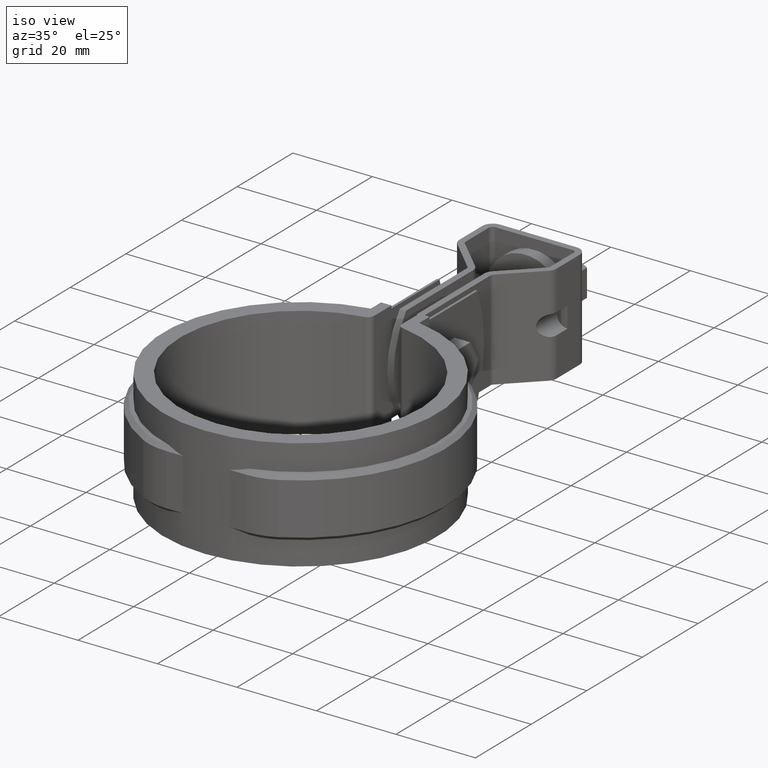
[diagram: clean part render]
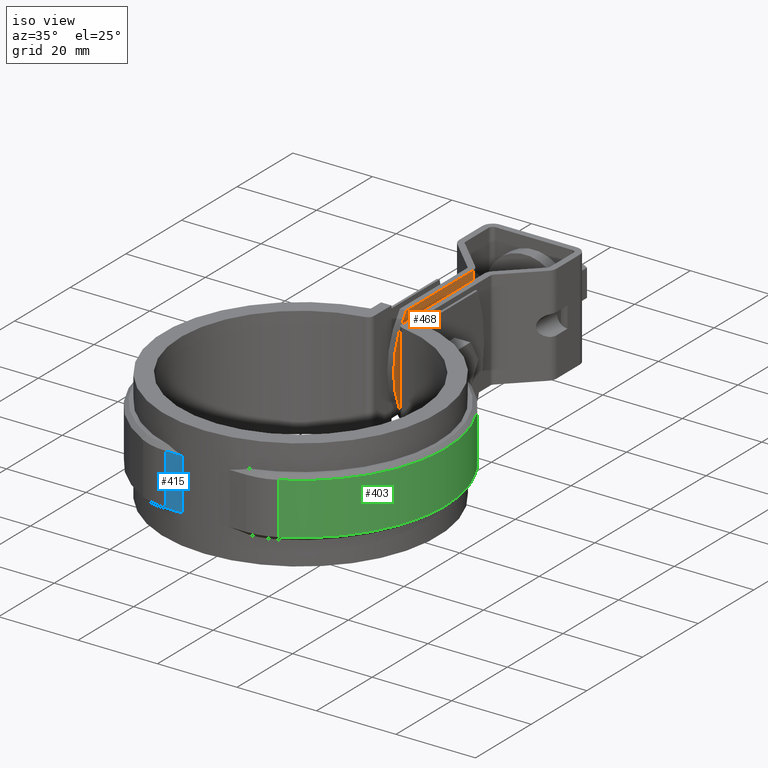
[diagram: same view with three faces highlighted in distinct colors, each labeled with its STEP entity id]
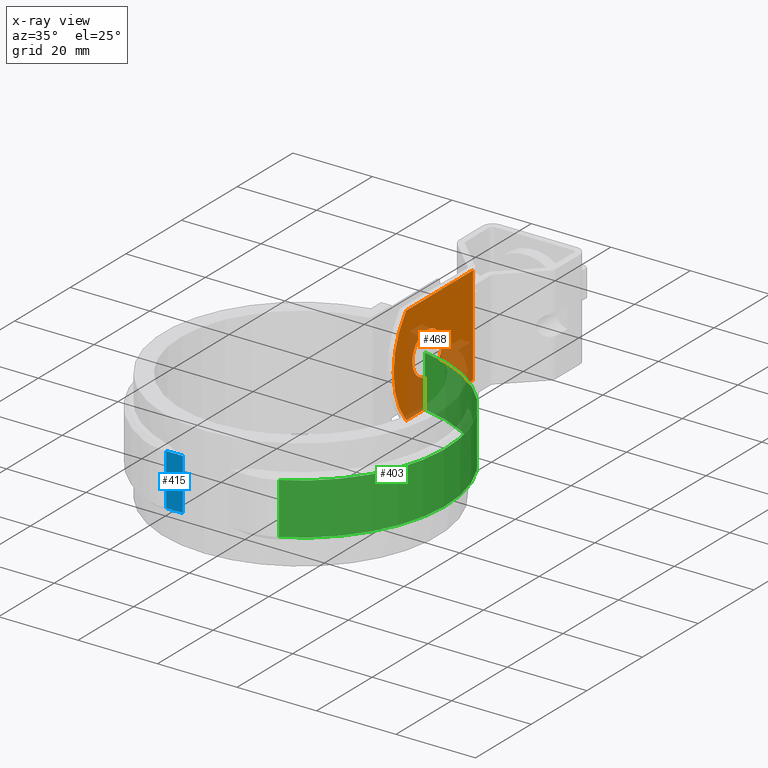
[diagram: x-ray of the same camera — body ghosted, the three highlighted faces saturated]
A machine part, iso view with three faces highlighted in distinct colors.
The next image is the same camera in x-ray (body ghosted, the three faces saturated) — at least one of them is partly hidden behind the body in this view.
Their STEP definitions:

[orange] entity #468 — the highlighted planar face has unit normal (1, 0, -0).
#468 = ADVANCED_FACE( '', ( #862, #863 ), #864, .T. );
#862 = FACE_BOUND( '', #1865, .T. );
#863 = FACE_OUTER_BOUND( '', #1866, .T. );
#864 = PLANE( '', #1867 );
#1865 = EDGE_LOOP( '', ( #4214 ) );
#1866 = EDGE_LOOP( '', ( #4215, #4216, #4217, #4218 ) );
#1867 = AXIS2_PLACEMENT_3D( '', #4219, #4220, #4221 );
#4214 = ORIENTED_EDGE( '', *, *, #5208, .T. );
#4215 = ORIENTED_EDGE( '', *, *, #5211, .T. );
#4216 = ORIENTED_EDGE( '', *, *, #5204, .T. );
#4217 = ORIENTED_EDGE( '', *, *, #5126, .F. );
#4218 = ORIENTED_EDGE( '', *, *, #5206, .T. );
#4219 = CARTESIAN_POINT( '', ( -1.40000000004981, 35.4015111806816, -25.0000000057727 ) );
#4220 = DIRECTION( '', ( 1.00000000000000, 8.93767281156515E-014, -3.93847312317879E-013 ) );
#4221 = DIRECTION( '', ( 8.93767281407311E-014, -1.00000000000000, 6.36784791563427E-011 ) );
#5126 = EDGE_CURVE( '', #5968, #5969, #5970, .T. );
#5204 = EDGE_CURVE( '', #6103, #5969, #6106, .T. );
#5206 = EDGE_CURVE( '', #5968, #6108, #6110, .T. );
#5208 = EDGE_CURVE( '', #6112, #6112, #6113, .F. );
#5211 = EDGE_CURVE( '', #6108, #6103, #6117, .T. );
#5968 = VERTEX_POINT( '', #9062 );
#5969 = VERTEX_POINT( '', #9063 );
#5970 = LINE( '', #9064, #9065 );
#6103 = VERTEX_POINT( '', #9269 );
#6106 = LINE( '', #9273, #9274 );
#6108 = VERTEX_POINT( '', #9276 );
#6110 = CIRCLE( '', #9279, 19.6111110000000 );
#6112 = VERTEX_POINT( '', #9281 );
#6113 = CIRCLE( '', #9282, 5.25000000000000 );
#6117 = LINE( '', #9287, #9288 );
#9062 = CARTESIAN_POINT( '', ( -1.40000000004037, 39.9015112153615, -6.05930583486014E-009 ) );
#9063 = CARTESIAN_POINT( '', ( -1.40000000004253, 63.9556575565696, -7.59103890857205E-009 ) );
#9064 = CARTESIAN_POINT( '', ( -1.40000000003996, 35.4015111822735, -5.77274339441658E-009 ) );
#9065 = VECTOR( '', #10155, 1000.00000000000 );
#9269 = CARTESIAN_POINT( '', ( -1.40000000005237, 63.9556575549776, -25.0000000075910 ) );
#9273 = CARTESIAN_POINT( '', ( -1.40000000005236, 63.9556575549776, -25.0000000075910 ) );
#9274 = VECTOR( '', #10283, 1000.00000000000 );
#9276 = CARTESIAN_POINT( '', ( -1.40000000005021, 39.9015112137697, -25.0000000060593 ) );
#9279 = AXIS2_PLACEMENT_3D( '', #10285, #10286, #10287 );
#9281 = CARTESIAN_POINT( '', ( -1.40000000004549, 42.1515111814774, -12.5000000062026 ) );
#9282 = AXIS2_PLACEMENT_3D( '', #10291, #10292, #10293 );
#9287 = CARTESIAN_POINT( '', ( -1.40000000004981, 35.4015111806816, -25.0000000057727 ) );
#9288 = VECTOR( '', #10298, 1000.00000000000 );
#10155 = DIRECTION( '', ( -8.97097950481186E-014, 1.00000000000000, -6.36784791563427E-011 ) );
#10283 = DIRECTION( '', ( 3.93847312312188E-013, 6.36784194194502E-011, 1.00000000000000 ) );
#10285 = CARTESIAN_POINT( '', ( -1.40000000004664, 55.0126221814773, -12.5000000070215 ) );
#10286 = DIRECTION( '', ( 1.00000000000000, 8.93767281156515E-014, -3.93847312317879E-013 ) );
#10287 = DIRECTION( '', ( 8.93767281407311E-014, -1.00000000000000, 6.36784791563427E-011 ) );
#10291 = CARTESIAN_POINT( '', ( -1.40000000004596, 47.4015111814774, -12.5000000065369 ) );
#10292 = DIRECTION( '', ( 1.00000000000000, 8.93767281156515E-014, -3.93847312317879E-013 ) );
#10293 = DIRECTION( '', ( 8.93767281407311E-014, -1.00000000000000, 6.36784791563427E-011 ) );
#10298 = DIRECTION( '', ( -8.97097950481186E-014, 1.00000000000000, -6.36784791563427E-011 ) );

[blue] entity #415 — the highlighted planar face has unit normal (-0, -1, 0).
#415 = ADVANCED_FACE( '', ( #752 ), #753, .T. );
#752 = FACE_OUTER_BOUND( '', #1577, .T. );
#753 = PLANE( '', #1578 );
#1577 = EDGE_LOOP( '', ( #3626, #3627, #3628, #3629 ) );
#1578 = AXIS2_PLACEMENT_3D( '', #3630, #3631, #3632 );
#3626 = ORIENTED_EDGE( '', *, *, #5099, .F. );
#3627 = ORIENTED_EDGE( '', *, *, #5100, .T. );
#3628 = ORIENTED_EDGE( '', *, *, #5073, .T. );
#3629 = ORIENTED_EDGE( '', *, *, #5090, .T. );
#3630 = CARTESIAN_POINT( '', ( -10.0516180289543, -34.0000000000000, -20.0000000000000 ) );
#3631 = DIRECTION( '', ( -2.77555756156289E-017, -1.00000000000000, 0.000000000000000 ) );
#3632 = DIRECTION( '', ( -1.00000000000000, 2.77555756156289E-017, 0.000000000000000 ) );
#5073 = EDGE_CURVE( '', #5898, #5896, #5899, .T. );
#5090 = EDGE_CURVE( '', #5896, #5923, #5925, .T. );
#5099 = EDGE_CURVE( '', #5936, #5923, #5938, .T. );
#5100 = EDGE_CURVE( '', #5936, #5898, #5939, .T. );
#5896 = VERTEX_POINT( '', #8947 );
#5898 = VERTEX_POINT( '', #8949 );
#5899 = LINE( '', #8950, #8951 );
#5923 = VERTEX_POINT( '', #8984 );
#5925 = LINE( '', #8987, #8988 );
#5936 = VERTEX_POINT( '', #9002 );
#5938 = LINE( '', #9004, #9005 );
#5939 = LINE( '', #9006, #9007 );
#8947 = CARTESIAN_POINT( '', ( -5.82280216047221, -34.0000000000000, -6.00000000000000 ) );
#8949 = CARTESIAN_POINT( '', ( -5.82280216047221, -34.0000000000000, -19.0000000000000 ) );
#8950 = CARTESIAN_POINT( '', ( -5.82280216047221, -34.0000000000000, -20.0000000000000 ) );
#8951 = VECTOR( '', #10068, 1000.00000000000 );
#8984 = CARTESIAN_POINT( '', ( -10.0516180289544, -34.0000000000000, -6.00000000000000 ) );
#8987 = CARTESIAN_POINT( '', ( -10.0516180289544, -34.0000000000000, -6.00000000000000 ) );
#8988 = VECTOR( '', #10097, 1000.00000000000 );
#9002 = CARTESIAN_POINT( '', ( -10.0516180289544, -34.0000000000000, -19.0000000000000 ) );
#9004 = CARTESIAN_POINT( '', ( -10.0516180289544, -34.0000000000000, -20.0000000000000 ) );
#9005 = VECTOR( '', #10116, 1000.00000000000 );
#9006 = CARTESIAN_POINT( '', ( -10.0516180289543, -34.0000000000000, -19.0000000000000 ) );
#9007 = VECTOR( '', #10117, 1000.00000000000 );
#10068 = DIRECTION( '', ( 0.000000000000000, 0.000000000000000, 1.00000000000000 ) );
#10097 = DIRECTION( '', ( -1.00000000000000, 2.77555756156289E-017, 0.000000000000000 ) );
#10116 = DIRECTION( '', ( 0.000000000000000, 0.000000000000000, 1.00000000000000 ) );
#10117 = DIRECTION( '', ( 1.00000000000000, -2.77555756156289E-017, 0.000000000000000 ) );

[green] entity #403 — the highlighted cylindrical surface (partial cylindrical patch) has radius 36.495 mm, axis along (0, 0, -1).
#403 = ADVANCED_FACE( '', ( #728 ), #729, .T. );
#728 = FACE_OUTER_BOUND( '', #1553, .T. );
#729 = CYLINDRICAL_SURFACE( '', #1554, 36.4950000000000 );
#1553 = EDGE_LOOP( '', ( #3540, #3541, #3542, #3543 ) );
#1554 = AXIS2_PLACEMENT_3D( '', #3544, #3545, #3546 );
#3540 = ORIENTED_EDGE( '', *, *, #5048, .T. );
#3541 = ORIENTED_EDGE( '', *, *, #5042, .T. );
#3542 = ORIENTED_EDGE( '', *, *, #5079, .F. );
#3543 = ORIENTED_EDGE( '', *, *, #5076, .T. );
#3544 = CARTESIAN_POINT( '', ( -8.67361737988404E-016, -6.93889390390723E-015, -20.0000000000000 ) );
#3545 = DIRECTION( '', ( 0.000000000000000, 0.000000000000000, -1.00000000000000 ) );
#3546 = DIRECTION( '', ( 0.168801338178640, 0.985650094216553, 0.000000000000000 ) );
#5042 = EDGE_CURVE( '', #5837, #5841, #5843, .F. );
#5048 = EDGE_CURVE( '', #5854, #5837, #5855, .T. );
#5076 = EDGE_CURVE( '', #5903, #5854, #5904, .T. );
#5079 = EDGE_CURVE( '', #5903, #5841, #5908, .T. );
#5837 = VERTEX_POINT( '', #8866 );
#5841 = VERTEX_POINT( '', #8873 );
#5843 = CIRCLE( '', #8876, 36.4950000000000 );
#5854 = VERTEX_POINT( '', #8892 );
#5855 = LINE( '', #8893, #8894 );
#5903 = VERTEX_POINT( '', #8955 );
#5904 = CIRCLE( '', #8956, 36.4950000000000 );
#5908 = LINE( '', #8961, #8962 );
#8866 = CARTESIAN_POINT( '', ( 6.10000000000001, 35.9815928635740, -6.00000000000000 ) );
#8873 = CARTESIAN_POINT( '', ( 17.0660060463684, -32.2588974180042, -6.00000000000000 ) );
#8876 = AXIS2_PLACEMENT_3D( '', #10008, #10009, #10010 );
#8892 = CARTESIAN_POINT( '', ( 6.10000000000001, 35.9815928635740, -19.0000000000000 ) );
#8893 = CARTESIAN_POINT( '', ( 6.10000000000001, 35.9815928635740, -20.0000000000000 ) );
#8894 = VECTOR( '', #10016, 1000.00000000000 );
#8955 = CARTESIAN_POINT( '', ( 17.0660060463684, -32.2588974180042, -19.0000000000000 ) );
#8956 = AXIS2_PLACEMENT_3D( '', #10075, #10076, #10077 );
#8961 = CARTESIAN_POINT( '', ( 17.0660060463684, -32.2588974180042, -20.0000000000000 ) );
#8962 = VECTOR( '', #10082, 1000.00000000000 );
#10008 = CARTESIAN_POINT( '', ( -8.67361737988404E-016, -6.93889390390723E-015, -6.00000000000000 ) );
#10009 = DIRECTION( '', ( 0.000000000000000, 0.000000000000000, 1.00000000000000 ) );
#10010 = DIRECTION( '', ( 1.00000000000000, 0.000000000000000, 0.000000000000000 ) );
#10016 = DIRECTION( '', ( 0.000000000000000, 0.000000000000000, 1.00000000000000 ) );
#10075 = CARTESIAN_POINT( '', ( -8.67361737988404E-016, -6.93889390390723E-015, -19.0000000000000 ) );
#10076 = DIRECTION( '', ( 0.000000000000000, 0.000000000000000, 1.00000000000000 ) );
#10077 = DIRECTION( '', ( 1.00000000000000, 0.000000000000000, 0.000000000000000 ) );
#10082 = DIRECTION( '', ( 0.000000000000000, 0.000000000000000, 1.00000000000000 ) );